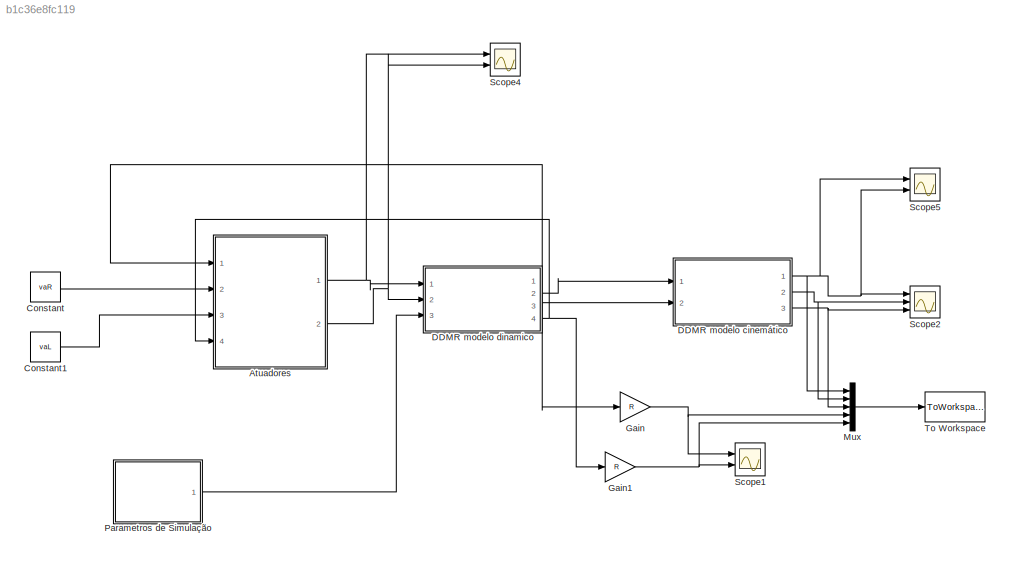
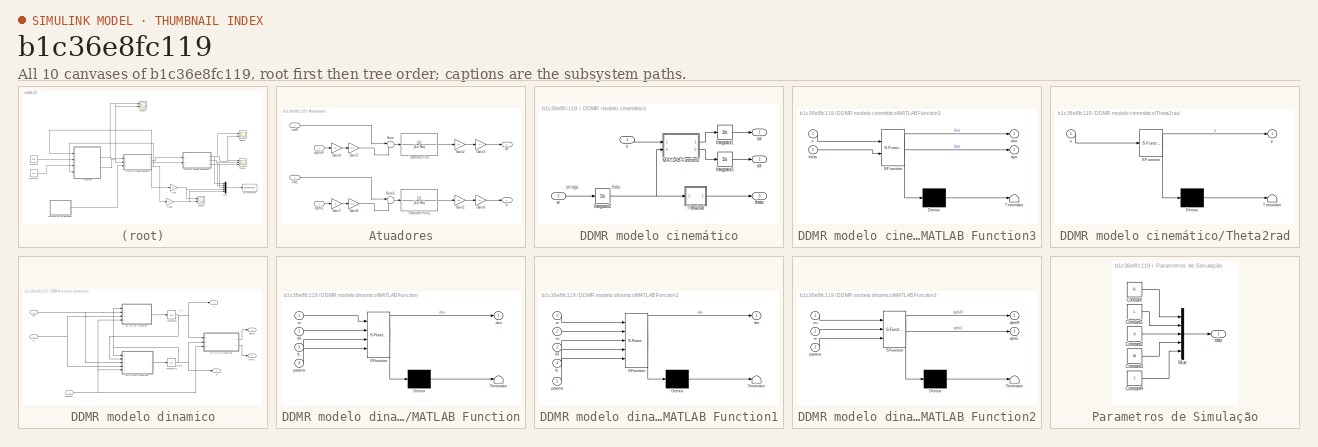
[diagram: thumbnail index - all 10 canvases of the model, root first then tree order]
MODEL slx_b1c36e8fc119
KIND model
CONFIG AbsTol = auto
CONFIG EnableMultiTasking = off
CONFIG FixedStep = 5e-3
CONFIG InitFcn = run('DDMRsimulinkParameters.m')
CONFIG MaxStep = auto
CONFIG MinStep = auto
CONFIG RelTol = 1e-3
CONFIG SampleTimeConstraint = Unconstrained
CONFIG Solver = VariableStepAuto
CONFIG SolverName = VariableStepAuto
CONFIG StartTime = 0.0
CONFIG StopTime = tf
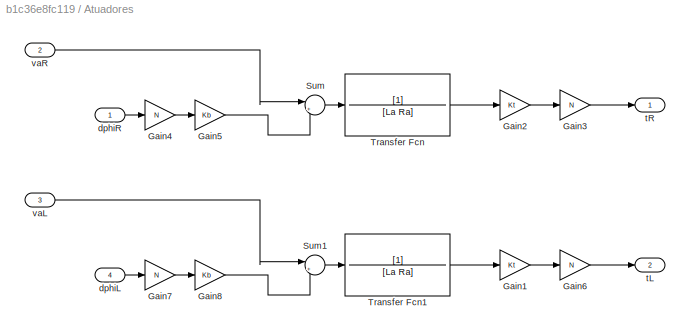
BLOCK [SubSystem] Atuadores
  Ports = [4, 2]
  RequestExecContextInheritance = off
BLOCK [Gain] Atuadores/Gain1
  Gain = Kt
  OutDataTypeStr = Inherit: Inherit via internal rule
  ParamDataTypeStr = Inherit: Inherit via internal rule
  SaturateOnIntegerOverflow = off
BLOCK [Gain] Atuadores/Gain2
  Gain = Kt
  OutDataTypeStr = Inherit: Inherit via internal rule
  ParamDataTypeStr = Inherit: Inherit via internal rule
  SaturateOnIntegerOverflow = off
BLOCK [Gain] Atuadores/Gain3
  Gain = N
  OutDataTypeStr = Inherit: Inherit via internal rule
  ParamDataTypeStr = Inherit: Inherit via internal rule
  SaturateOnIntegerOverflow = off
BLOCK [Gain] Atuadores/Gain4
  Gain = N
  OutDataTypeStr = Inherit: Inherit via internal rule
  ParamDataTypeStr = Inherit: Inherit via internal rule
  SaturateOnIntegerOverflow = off
BLOCK [Gain] Atuadores/Gain5
  Gain = Kb
  OutDataTypeStr = Inherit: Inherit via internal rule
  ParamDataTypeStr = Inherit: Inherit via internal rule
  SaturateOnIntegerOverflow = off
BLOCK [Gain] Atuadores/Gain6
  Gain = N
  OutDataTypeStr = Inherit: Inherit via internal rule
  ParamDataTypeStr = Inherit: Inherit via internal rule
  SaturateOnIntegerOverflow = off
BLOCK [Gain] Atuadores/Gain7
  Gain = N
  OutDataTypeStr = Inherit: Inherit via internal rule
  ParamDataTypeStr = Inherit: Inherit via internal rule
  SaturateOnIntegerOverflow = off
BLOCK [Gain] Atuadores/Gain8
  Gain = Kb
  OutDataTypeStr = Inherit: Inherit via internal rule
  ParamDataTypeStr = Inherit: Inherit via internal rule
  SaturateOnIntegerOverflow = off
BLOCK [Sum] Atuadores/Sum
  IconShape = round
  InputSameDT = off
  Inputs = |+-
  OutDataTypeStr = Inherit: Inherit via internal rule
  Ports = [2, 1]
  SaturateOnIntegerOverflow = off
BLOCK [Sum] Atuadores/Sum1
  IconShape = round
  InputSameDT = off
  Inputs = |+-
  OutDataTypeStr = Inherit: Inherit via internal rule
  Ports = [2, 1]
  SaturateOnIntegerOverflow = off
BLOCK [TransferFcn] Atuadores/Transfer Fcn
  Denominator = [La Ra]
BLOCK [TransferFcn] Atuadores/Transfer Fcn1
  Denominator = [La Ra]
BLOCK [Inport] Atuadores/dphiL
  IconDisplay = Port number
  Port = 4
BLOCK [Inport] Atuadores/dphiR
  IconDisplay = Port number
BLOCK [Outport] Atuadores/tL
  IconDisplay = Port number
  Port = 2
BLOCK [Outport] Atuadores/tR
  IconDisplay = Port number
BLOCK [Inport] Atuadores/vaL
  IconDisplay = Port number
  Port = 3
BLOCK [Inport] Atuadores/vaR
  IconDisplay = Port number
  Port = 2
BLOCK [Constant] Constant
  Value = vaR
BLOCK [Constant] Constant1
  Value = vaL
BLOCK [SubSystem] DDMR modelo cinemático
  Ports = [2, 3]
  RequestExecContextInheritance = off
BLOCK [Integrator] DDMR modelo cinemático/Integrator1
  Ports = [1, 1]
BLOCK [Integrator] DDMR modelo cinemático/Integrator2
  Ports = [1, 1]
BLOCK [Integrator] DDMR modelo cinemático/Integrator3
  Ports = [1, 1]
BLOCK [SubSystem] DDMR modelo cinemático/MATLAB Function3
  ErrorFcn = Stateflow.Translate.translate
  PermitHierarchicalResolution = ExplicitOnly
  Ports = [2, 2]
  RequestExecContextInheritance = off
  SFBlockType = MATLAB Function
  TreatAsAtomicUnit = on
BLOCK [Demux] DDMR modelo cinemático/MATLAB Function3/ Demux 
  Outputs = 1
  Ports = [1, 1]
BLOCK [S-Function] DDMR modelo cinemático/MATLAB Function3/ SFunction 
  EnableBusSupport = on
  FunctionName = sf_sfun
  PortCounts = [2 3]
  Ports = [2, 3]
  SFcnIsStateOwnerBlock = off
  SFunctionDeploymentMode = off
  Tag = Stateflow S-Function DDMRsimulink 9
BLOCK [Terminator] DDMR modelo cinemático/MATLAB Function3/ Terminator 
BLOCK [Outport] DDMR modelo cinemático/MATLAB Function3/dxa
  IconDisplay = Port number
BLOCK [Outport] DDMR modelo cinemático/MATLAB Function3/dya
  IconDisplay = Port number
  Port = 2
BLOCK [Inport] DDMR modelo cinemático/MATLAB Function3/theta
  IconDisplay = Port number
  Port = 2
BLOCK [Inport] DDMR modelo cinemático/MATLAB Function3/v
  IconDisplay = Port number
BLOCK [SubSystem] DDMR modelo cinemático/Theta2rad
  ErrorFcn = Stateflow.Translate.translate
  PermitHierarchicalResolution = ExplicitOnly
  Ports = [1, 1]
  RequestExecContextInheritance = off
  SFBlockType = MATLAB Function
  TreatAsAtomicUnit = on
BLOCK [Demux] DDMR modelo cinemático/Theta2rad/ Demux 
  Outputs = 1
  Ports = [1, 1]
BLOCK [S-Function] DDMR modelo cinemático/Theta2rad/ SFunction 
  EnableBusSupport = on
  FunctionName = sf_sfun
  PortCounts = [1 2]
  Ports = [1, 2]
  SFcnIsStateOwnerBlock = off
  SFunctionDeploymentMode = off
  Tag = Stateflow S-Function DDMRsimulink 6
BLOCK [Terminator] DDMR modelo cinemático/Theta2rad/ Terminator 
BLOCK [Inport] DDMR modelo cinemático/Theta2rad/u
  IconDisplay = Port number
BLOCK [Outport] DDMR modelo cinemático/Theta2rad/y
  IconDisplay = Port number
BLOCK [Outport] DDMR modelo cinemático/theta
  IconDisplay = Port number
  Port = 3
BLOCK [Inport] DDMR modelo cinemático/v
  IconDisplay = Port number
BLOCK [Inport] DDMR modelo cinemático/w
  IconDisplay = Port number
  Port = 2
BLOCK [Outport] DDMR modelo cinemático/xa
  IconDisplay = Port number
BLOCK [Outport] DDMR modelo cinemático/ya
  IconDisplay = Port number
  Port = 2
BLOCK [SubSystem] DDMR modelo dinamico
  Ports = [3, 4]
  RequestExecContextInheritance = off
BLOCK [Integrator] DDMR modelo dinamico/Integrator
  Ports = [1, 1]
BLOCK [Integrator] DDMR modelo dinamico/Integrator1
  Ports = [1, 1]
BLOCK [SubSystem] DDMR modelo dinamico/MATLAB Function
  ErrorFcn = Stateflow.Translate.translate
  PermitHierarchicalResolution = ExplicitOnly
  Ports = [4, 1]
  RequestExecContextInheritance = off
  SFBlockType = MATLAB Function
  TreatAsAtomicUnit = on
BLOCK [Demux] DDMR modelo dinamico/MATLAB Function/ Demux 
  Outputs = 1
  Ports = [1, 1]
BLOCK [S-Function] DDMR modelo dinamico/MATLAB Function/ SFunction 
  EnableBusSupport = on
  FunctionName = sf_sfun
  PortCounts = [4 2]
  Ports = [4, 2]
  SFcnIsStateOwnerBlock = off
  SFunctionDeploymentMode = off
  Tag = Stateflow S-Function DDMRsimulink 2
BLOCK [Terminator] DDMR modelo dinamico/MATLAB Function/ Terminator 
BLOCK [Outport] DDMR modelo dinamico/MATLAB Function/dvu
  IconDisplay = Port number
BLOCK [Inport] DDMR modelo dinamico/MATLAB Function/params
  IconDisplay = Port number
  Port = 4
BLOCK [Inport] DDMR modelo dinamico/MATLAB Function/tL
  IconDisplay = Port number
  Port = 3
BLOCK [Inport] DDMR modelo dinamico/MATLAB Function/tR
  IconDisplay = Port number
  Port = 2
BLOCK [Inport] DDMR modelo dinamico/MATLAB Function/w
  IconDisplay = Port number
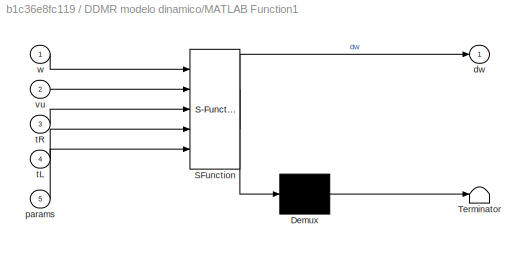
BLOCK [SubSystem] DDMR modelo dinamico/MATLAB Function1
  ErrorFcn = Stateflow.Translate.translate
  PermitHierarchicalResolution = ExplicitOnly
  Ports = [5, 1]
  RequestExecContextInheritance = off
  SFBlockType = MATLAB Function
  TreatAsAtomicUnit = on
BLOCK [Demux] DDMR modelo dinamico/MATLAB Function1/ Demux 
  Outputs = 1
  Ports = [1, 1]
BLOCK [S-Function] DDMR modelo dinamico/MATLAB Function1/ SFunction 
  EnableBusSupport = on
  FunctionName = sf_sfun
  PortCounts = [5 2]
  Ports = [5, 2]
  SFcnIsStateOwnerBlock = off
  SFunctionDeploymentMode = off
  Tag = Stateflow S-Function DDMRsimulink 1
BLOCK [Terminator] DDMR modelo dinamico/MATLAB Function1/ Terminator 
BLOCK [Outport] DDMR modelo dinamico/MATLAB Function1/dw
  IconDisplay = Port number
BLOCK [Inport] DDMR modelo dinamico/MATLAB Function1/params
  IconDisplay = Port number
  Port = 5
BLOCK [Inport] DDMR modelo dinamico/MATLAB Function1/tL
  IconDisplay = Port number
  Port = 4
BLOCK [Inport] DDMR modelo dinamico/MATLAB Function1/tR
  IconDisplay = Port number
  Port = 3
BLOCK [Inport] DDMR modelo dinamico/MATLAB Function1/vu
  IconDisplay = Port number
  Port = 2
BLOCK [Inport] DDMR modelo dinamico/MATLAB Function1/w
  IconDisplay = Port number
BLOCK [SubSystem] DDMR modelo dinamico/MATLAB Function2
  ErrorFcn = Stateflow.Translate.translate
  PermitHierarchicalResolution = ExplicitOnly
  Ports = [3, 2]
  RequestExecContextInheritance = off
  SFBlockType = MATLAB Function
  TreatAsAtomicUnit = on
BLOCK [Demux] DDMR modelo dinamico/MATLAB Function2/ Demux 
  Outputs = 1
  Ports = [1, 1]
BLOCK [S-Function] DDMR modelo dinamico/MATLAB Function2/ SFunction 
  EnableBusSupport = on
  FunctionName = sf_sfun
  PortCounts = [3 3]
  Ports = [3, 3]
  SFcnIsStateOwnerBlock = off
  SFunctionDeploymentMode = off
  Tag = Stateflow S-Function DDMRsimulink 3
BLOCK [Terminator] DDMR modelo dinamico/MATLAB Function2/ Terminator 
BLOCK [Outport] DDMR modelo dinamico/MATLAB Function2/dphiL
  IconDisplay = Port number
  Port = 2
BLOCK [Outport] DDMR modelo dinamico/MATLAB Function2/dphiR
  IconDisplay = Port number
BLOCK [Inport] DDMR modelo dinamico/MATLAB Function2/params
  IconDisplay = Port number
  Port = 3
BLOCK [Inport] DDMR modelo dinamico/MATLAB Function2/vu
  IconDisplay = Port number
BLOCK [Inport] DDMR modelo dinamico/MATLAB Function2/w
  IconDisplay = Port number
  Port = 2
BLOCK [Outport] DDMR modelo dinamico/dPhiL
  IconDisplay = Port number
  Port = 4
BLOCK [Outport] DDMR modelo dinamico/dphiR
  IconDisplay = Port number
BLOCK [Inport] DDMR modelo dinamico/params
  IconDisplay = Port number
  Port = 3
BLOCK [Inport] DDMR modelo dinamico/tL
  IconDisplay = Port number
  Port = 2
BLOCK [Inport] DDMR modelo dinamico/tR
  IconDisplay = Port number
BLOCK [Outport] DDMR modelo dinamico/v
  IconDisplay = Port number
  Port = 2
BLOCK [Outport] DDMR modelo dinamico/w
  IconDisplay = Port number
  Port = 3
BLOCK [Gain] Gain
  Gain = R
  OutDataTypeStr = Inherit: Inherit via internal rule
  ParamDataTypeStr = Inherit: Inherit via internal rule
  SaturateOnIntegerOverflow = off
BLOCK [Gain] Gain1
  Gain = R
  OutDataTypeStr = Inherit: Inherit via internal rule
  ParamDataTypeStr = Inherit: Inherit via internal rule
  SaturateOnIntegerOverflow = off
BLOCK [Mux] Mux
  DisplayOption = bar
  Inputs = 5
  Ports = [5, 1]
BLOCK [SubSystem] Parametros de Simulação
  Ports = [0, 1]
  RequestExecContextInheritance = off
BLOCK [Constant] Parametros de Simulação/Constant
  Value = R
BLOCK [Constant] Parametros de Simulação/Constant1
  Value = L
BLOCK [Constant] Parametros de Simulação/Constant2
  Value = d
BLOCK [Constant] Parametros de Simulação/Constant3
  Value = M
BLOCK [Constant] Parametros de Simulação/Constant4
  Value = J
BLOCK [Mux] Parametros de Simulação/Mux
  DisplayOption = bar
  Inputs = 5
  Ports = [5, 1]
BLOCK [Outport] Parametros de Simulação/robo
  IconDisplay = Port number
BLOCK [Scope] Scope1
  Floating = off
  NumInputPorts = 2
  Ports = [2]
  ScopeSpecificationString = Simulink.scopes.TimeScopeBlockCfg('CurrentConfiguration', extmgr.ConfigurationSet(extmgr.Configuration('Core','General UI',true),extmgr.Configuration('Core','Source UI',true),extmgr.Configuration('Sources','WiredSimulink',true,'DataLoggingVariableName','ScopeData1'),extmgr.Configuration('Visuals','Time Domain',true,'SerializedDisplays',{struct('MinYLimReal','-0.16722','MaxYLimReal','1.50499','YLab...<+1423ch>
BLOCK [Scope] Scope2
  Floating = off
  NumInputPorts = 3
  Ports = [3]
  ScopeSpecificationString = Simulink.scopes.TimeScopeBlockCfg('CurrentConfiguration', extmgr.ConfigurationSet(extmgr.Configuration('Core','General UI',true),extmgr.Configuration('Core','Source UI',true),extmgr.Configuration('Sources','WiredSimulink',true,'DataLoggingVariableName','ScopeData2'),extmgr.Configuration('Visuals','Time Domain',true,'SerializedDisplays',{struct('MinYLimReal','-3.92647','MaxYLimReal','3.92553','YLab...<+1464ch>
BLOCK [Scope] Scope4
  Floating = off
  NumInputPorts = 2
  Ports = [2]
  ScopeSpecificationString = Simulink.scopes.TimeScopeBlockCfg('CurrentConfiguration', extmgr.ConfigurationSet(extmgr.Configuration('Core','General UI',true),extmgr.Configuration('Core','Source UI',true),extmgr.Configuration('Sources','WiredSimulink',true,'DataLoggingVariableName','ScopeData3'),extmgr.Configuration('Visuals','Time Domain',true,'SerializedDisplays',{struct('MinYLimReal','-0.26222','MaxYLimReal','0.46109','YLab...<+1411ch>
BLOCK [Scope] Scope5
  Floating = off
  NumInputPorts = 2
  Ports = [2]
  ScopeSpecificationString = Simulink.scopes.TimeScopeBlockCfg('CurrentConfiguration', extmgr.ConfigurationSet(extmgr.Configuration('Core','General UI',true),extmgr.Configuration('Core','Source UI',true),extmgr.Configuration('Sources','WiredSimulink',true,'DataLoggingVariableName','ScopeData1'),extmgr.Configuration('Visuals','Time Domain',true,'SerializedDisplays',{struct('MinYLimReal','-0.1616','MaxYLimReal','0.28135','YLabe...<+1435ch>
BLOCK [ToWorkspace] To Workspace
  FixptAsFi = on
  MaxDataPoints = inf
  Ports = [1]
  SampleTime = -1
  Save2DSignal = 3-D array (concatenate along third dimension)
  SaveFormat = Structure With Time
  VariableName = DadosSim
ANNOTATION DDMR modelo cinemático: omega
ANNOTATION DDMR modelo cinemático: theta
ANNOTATION DDMR modelo dinamico: omega
ANNOTATION DDMR modelo dinamico: v_u
LINE Atuadores/Gain1:1 -> Atuadores/Gain6:1
LINE Atuadores/Gain2:1 -> Atuadores/Gain3:1
LINE Atuadores/Gain3:1 -> Atuadores/tR:1
LINE Atuadores/Gain4:1 -> Atuadores/Gain5:1
LINE Atuadores/Gain5:1 -> Atuadores/Sum:2
LINE Atuadores/Gain6:1 -> Atuadores/tL:1
LINE Atuadores/Gain7:1 -> Atuadores/Gain8:1
LINE Atuadores/Gain8:1 -> Atuadores/Sum1:2
LINE Atuadores/Sum1:1 -> Atuadores/Transfer Fcn1:1
LINE Atuadores/Sum:1 -> Atuadores/Transfer Fcn:1
LINE Atuadores/Transfer Fcn1:1 -> Atuadores/Gain1:1
LINE Atuadores/Transfer Fcn:1 -> Atuadores/Gain2:1
LINE Atuadores/dphiL:1 -> Atuadores/Gain7:1
LINE Atuadores/dphiR:1 -> Atuadores/Gain4:1
LINE Atuadores/vaL:1 -> Atuadores/Sum1:1
LINE Atuadores/vaR:1 -> Atuadores/Sum:1
NET Atuadores:1 -> DDMR modelo dinamico:1, Scope4:1
NET Atuadores:2 -> DDMR modelo dinamico:2, Scope4:2
LINE Constant1:1 -> Atuadores:3
LINE Constant:1 -> Atuadores:2
LINE DDMR modelo cinemático/Integrator1:1 -> DDMR modelo cinemático/xa:1
NET DDMR modelo cinemático/Integrator2:1 -> DDMR modelo cinemático/MATLAB Function3:2, DDMR modelo cinemático/Theta2rad:1
LINE DDMR modelo cinemático/Integrator3:1 -> DDMR modelo cinemático/ya:1
LINE DDMR modelo cinemático/MATLAB Function3:1 -> DDMR modelo cinemático/Integrator1:1
LINE DDMR modelo cinemático/MATLAB Function3:2 -> DDMR modelo cinemático/Integrator3:1
LINE DDMR modelo cinemático/Theta2rad:1 -> DDMR modelo cinemático/theta:1
LINE DDMR modelo cinemático/v:1 -> DDMR modelo cinemático/MATLAB Function3:1
LINE DDMR modelo cinemático/w:1 -> DDMR modelo cinemático/Integrator2:1
NET DDMR modelo cinemático:1 -> Mux:1, Scope2:1, Scope5:1, Scope5:2
NET DDMR modelo cinemático:2 -> Mux:2, Scope2:2
NET DDMR modelo cinemático:3 -> Mux:3, Scope2:3
NET DDMR modelo dinamico/Integrator1:1 -> DDMR modelo dinamico/MATLAB Function1:1, DDMR modelo dinamico/MATLAB Function2:2, DDMR modelo dinamico/MATLAB Function:1, DDMR modelo dinamico/w:1
NET DDMR modelo dinamico/Integrator:1 -> DDMR modelo dinamico/MATLAB Function1:2, DDMR modelo dinamico/MATLAB Function2:1, DDMR modelo dinamico/v:1
LINE DDMR modelo dinamico/MATLAB Function1:1 -> DDMR modelo dinamico/Integrator1:1
LINE DDMR modelo dinamico/MATLAB Function2:1 -> DDMR modelo dinamico/dphiR:1
LINE DDMR modelo dinamico/MATLAB Function2:2 -> DDMR modelo dinamico/dPhiL:1
LINE DDMR modelo dinamico/MATLAB Function:1 -> DDMR modelo dinamico/Integrator:1
NET DDMR modelo dinamico/params:1 -> DDMR modelo dinamico/MATLAB Function1:5, DDMR modelo dinamico/MATLAB Function2:3, DDMR modelo dinamico/MATLAB Function:4
NET DDMR modelo dinamico/tL:1 -> DDMR modelo dinamico/MATLAB Function1:4, DDMR modelo dinamico/MATLAB Function:3
NET DDMR modelo dinamico/tR:1 -> DDMR modelo dinamico/MATLAB Function1:3, DDMR modelo dinamico/MATLAB Function:2
NET DDMR modelo dinamico:1 -> Atuadores:1, Gain:1
LINE DDMR modelo dinamico:2 -> DDMR modelo cinemático:1
LINE DDMR modelo dinamico:3 -> DDMR modelo cinemático:2
NET DDMR modelo dinamico:4 -> Atuadores:4, Gain1:1
NET Gain1:1 -> Mux:5, Scope1:2
NET Gain:1 -> Mux:4, Scope1:1
LINE Mux:1 -> To Workspace:1
LINE Parametros de Simulação/Constant1:1 -> Parametros de Simulação/Mux:2
LINE Parametros de Simulação/Constant2:1 -> Parametros de Simulação/Mux:3
LINE Parametros de Simulação/Constant3:1 -> Parametros de Simulação/Mux:4
LINE Parametros de Simulação/Constant4:1 -> Parametros de Simulação/Mux:5
LINE Parametros de Simulação/Constant:1 -> Parametros de Simulação/Mux:1
LINE Parametros de Simulação/Mux:1 -> Parametros de Simulação/robo:1
LINE Parametros de Simulação:1 -> DDMR modelo dinamico:3
note: NET lines group one-source signal fan-out (src -> all destinations, sorted); 1:1 wires keep LINE
CHART DDMR
modelo dinamico/MATLAB Function1 states=1 transitions=1
  STATE_LABEL 'eML_blk_kernel()'
  STATE_LABEL 'SCRIPT:\nfunction dw = fcn(w, vu, tR, tL, params)\n\nR = params(1);\nL = params(2);\nd = params(3);\nM = params(4);\nJ = params(5);\n\ndw = L*(tR-tL)/(R*(M*d*d + J)) - w*vu*M*d/(M*d*d + J);\n'
CHART DDMR
modelo dinamico/MATLAB Function states=1 transitions=1
  STATE_LABEL 'eML_blk_kernel()'
  STATE_LABEL 'SCRIPT:\nfunction dvu = fcn(w, tR, tL, params)\n\nR = params(1);\nd = params(3);\nM = params(4);\n\ndvu = (tR+tL)/(M*R) + d*w*w;\n'
CHART DDMR
modelo dinamico/MATLAB Function2 states=1 transitions=1
  STATE_LABEL 'eML_blk_kernel()'
  STATE_LABEL 'SCRIPT:\nfunction [dphiR, dphiL] = fcn(vu, w, params)\n\nR = params(1);\nL = params(2);\n\ndphiR = (vu+L*w)/R;\ndphiL = (vu-L*w)/R;\n\nend'
CHART DDMR
modelo cinemático/Theta2rad states=1 transitions=1
  STATE_LABEL 'eML_blk_kernel()'
  STATE_LABEL 'SCRIPT:\nfunction y = fcn(u)\n\ny = u;\nwhile (abs(y) > pi)\n    if(y > 0)\n        y = y - 2*pi;\n    else\n        y = y + 2*pi;\n    end\nend\n\nend\n'
CHART DDMR
modelo cinemático/MATLAB Function3 states=1 transitions=1
  STATE_LABEL 'eML_blk_kernel()'
  STATE_LABEL 'SCRIPT:\nfunction [dxa, dya]  = fcn(v, theta)\n\ndxa = cos(theta)*v;\ndya = sin(theta)*v;\n'
